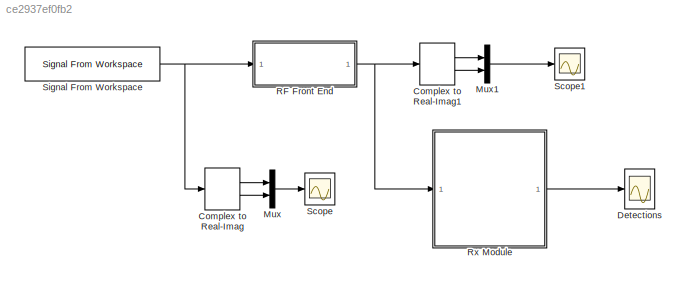
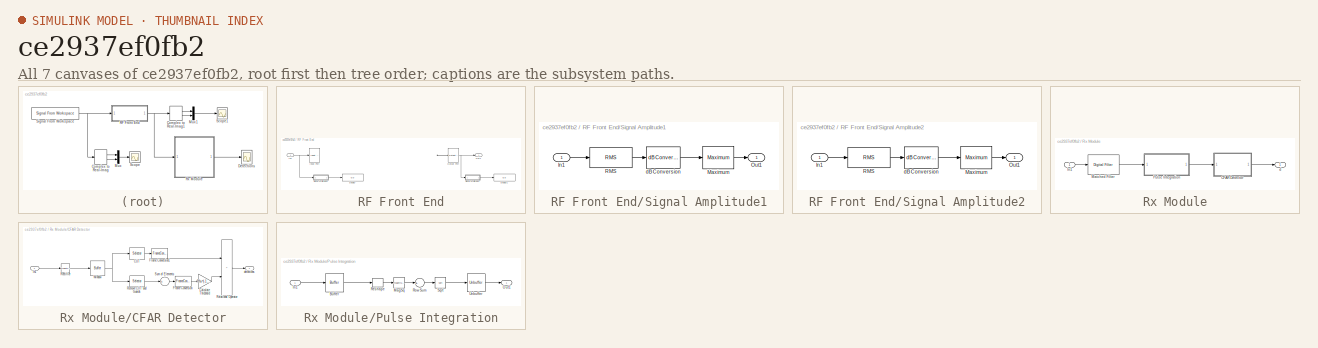
[diagram: thumbnail index - all 7 canvases of the model, root first then tree order]
MODEL slx_ce2937ef0fb2
KIND model
WORKSPACE source: MAT-file member
WORKSPACE Ts = 1.6667e-07
BLOCK [ComplexToRealImag] Complex to Real-Imag
  Ports = [1, 2]
BLOCK [ComplexToRealImag] Complex to Real-Imag1
  Ports = [1, 2]
BLOCK [Scope] Detections
  DataFormat = StructureWithTime
  Floating = off
  LimitDataPoints = off
  NumInputPorts = 1
  Ports = [1]
  SampleTime = 0
  SaveName = ScopeData2
  ShowLegends = off
  TimeRange = 0.005
  YMax = 1
  YMin = 0
  ZoomMode = xonly
BLOCK [Mux] Mux
  DisplayOption = bar
  Inputs = 2
  Ports = [2, 1]
BLOCK [Mux] Mux1
  DisplayOption = bar
  Inputs = 2
  Ports = [2, 1]
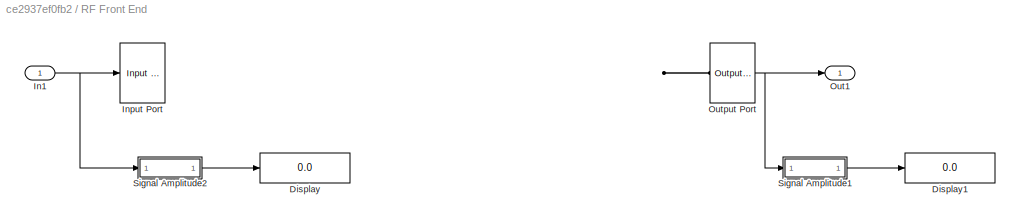
BLOCK [SubSystem] RF Front End
  FunctionWithSeparateData = off
  MaskHideContents = off
  MinAlgLoopOccurrences = off
  Opaque = off
  Ports = [1, 1]
  PropExecContextOutsideSubsystem = off
  RTWSystemCode = Auto
  RequestExecContextInheritance = off
BLOCK [Display] RF Front End/Display
  Decimation = 1
  Lockdown = off
  Ports = [1]
BLOCK [Display] RF Front End/Display1
  Decimation = 1
  Lockdown = off
  Ports = [1]
BLOCK [Inport] RF Front End/In1
  IconDisplay = Port number
BLOCK [Reference] RF Front End/Input Port  REF=rfports1/Input Port
  Description = source block
  Fc = carrierFreq
  FracBW = 0
  GoToTag = ABDCCBARCBJSOUIPGBSKSHY
  MaxLength = 128
  ModelDelay = 0
  NoiseFlag = on
  Ports = [1, 0, 0, 0, 0, 0, 1]
  RFhasDSP = Columns as channels (frame based)
  SourceBlock = rfports1/Input Port
  SourceType = Input Port
  TreatSimulinkInputSignalAs = Incident power wave
  Ts = Ts
  Zs = 50
  seed = 67987
BLOCK [Outport] RF Front End/Out1
  IconDisplay = Port number
BLOCK [Reference] RF Front End/Output Port  REF=rfports1/Output Port
  AllPlotType = X-Y plane
  AppliedComplexFormat = Magnitude (decibels)
  AppliedComplexFormat2 = Magnitude (decibels)
  AppliedNetworkData = S21
  AppliedNetworkData2 = NF
  AppliedXFormat = Hz
  AppliedXParameter = Freq
  ComplexFormat = Magnitude (decibels)
  DBFormat = Magnitude (decibels)
  DBMFormat = dBm
  DisplayData = off
  Flag = 0
  Freq = 1e9:1e8:3e9
  GoToTag = ABDCCBARCBJSOUIPGBSKSHY
  NetworkData = S11
  NoBudgetPlot = Composite data
  NoneFormat = None
  PlotFreq = User-specified
  PlotZ0 = 50
  PolarData = S11
  Ports = [0, 1, 0, 0, 0, 1]
  SmithData = S11
  SourceBlock = rfports1/Output Port
  SourceFreq = Derived from Input Port parameters
  SourceType = Output Port
  XOption = Linear
  YOption = Linear
  Zl = 50
  num_Models = 0
BLOCK [SubSystem] RF Front End/Signal Amplitude1
  FunctionWithSeparateData = off
  MaskHideContents = off
  MinAlgLoopOccurrences = off
  Opaque = off
  Ports = [1, 1]
  PropExecContextOutsideSubsystem = off
  RTWSystemCode = Auto
  RequestExecContextInheritance = off
BLOCK [Inport] RF Front End/Signal Amplitude1/In1
  IconDisplay = Port number
BLOCK [Reference] RF Front End/Signal Amplitude1/Maximum  REF=dspstat3/Maximum
  Dimension = 1
  InputProcessing = Inherited (this choice will be removed - see release notes)
  LockScale = off
  Ports = [1, 1]
  SourceBlock = dspstat3/Maximum
  SourceType = Maximum
  UserDataPersistent = on
  accumDataTypeStr = Inherit: Same as product output
  accumFracLength = 30
  accumLastDataTypeStr = Inherit: Same as product output
  accumMode = Same as product output
  accumWordLength = 32
  additionalParams = off
  allowOverrides = on
  colComp = on
  fcn = Running
  indexBase = One
  operateOver = Each column
  operation = maximum
  overflowMode = off
  prodOutputDataTypeStr = Inherit: Same as input
  prodOutputFracLength = 30
  prodOutputLastDataTypeStr = Inherit: Same as input
  prodOutputMode = Same as input
  prodOutputWordLength = 32
  reset = None
  roiEnable = off
  roiFlag = off
  roiOutput = Individual statistics for each ROI
  roiPortion = Entire ROI
  roiType = Rectangles
  roundingMode = Floor
BLOCK [Outport] RF Front End/Signal Amplitude1/Out1
  IconDisplay = Port number
BLOCK [Reference] RF Front End/Signal Amplitude1/RMS  REF=dspstat3/RMS
  InputProcessing = Columns as channels (frame based)
  Ports = [1, 1]
  SourceBlock = dspstat3/RMS
  SourceType = RMS
  UserDataPersistent = on
  dimension = 1
  directionMode = Each column
  reset_popup = None
  run = off
  treatSBRowAsCol = on
BLOCK [Reference] RF Front End/Signal Amplitude1/dB Conversion  REF=dspmathops/dB Conversion
  Ports = [1, 1]
  R = 1
  SourceBlock = dspmathops/dB Conversion
  SourceType = dB Conversion
  dBtype = dB
  fuzz = off
  intype = Amplitude
BLOCK [SubSystem] RF Front End/Signal Amplitude2
  FunctionWithSeparateData = off
  MaskHideContents = off
  MinAlgLoopOccurrences = off
  Opaque = off
  Ports = [1, 1]
  PropExecContextOutsideSubsystem = off
  RTWSystemCode = Auto
  RequestExecContextInheritance = off
BLOCK [Inport] RF Front End/Signal Amplitude2/In1
  IconDisplay = Port number
BLOCK [Reference] RF Front End/Signal Amplitude2/Maximum  REF=dspstat3/Maximum
  Dimension = 1
  InputProcessing = Inherited (this choice will be removed - see release notes)
  LockScale = off
  Ports = [1, 1]
  SourceBlock = dspstat3/Maximum
  SourceType = Maximum
  UserDataPersistent = on
  accumDataTypeStr = Inherit: Same as product output
  accumFracLength = 30
  accumLastDataTypeStr = Inherit: Same as product output
  accumMode = Same as product output
  accumWordLength = 32
  additionalParams = off
  allowOverrides = on
  colComp = on
  fcn = Running
  indexBase = One
  operateOver = Each column
  operation = maximum
  overflowMode = off
  prodOutputDataTypeStr = Inherit: Same as input
  prodOutputFracLength = 30
  prodOutputLastDataTypeStr = Inherit: Same as input
  prodOutputMode = Same as input
  prodOutputWordLength = 32
  reset = None
  roiEnable = off
  roiFlag = off
  roiOutput = Individual statistics for each ROI
  roiPortion = Entire ROI
  roiType = Rectangles
  roundingMode = Floor
BLOCK [Outport] RF Front End/Signal Amplitude2/Out1
  IconDisplay = Port number
BLOCK [Reference] RF Front End/Signal Amplitude2/RMS  REF=dspstat3/RMS
  InputProcessing = Columns as channels (frame based)
  Ports = [1, 1]
  SourceBlock = dspstat3/RMS
  SourceType = RMS
  UserDataPersistent = on
  dimension = 1
  directionMode = Each column
  reset_popup = None
  run = off
  treatSBRowAsCol = on
BLOCK [Reference] RF Front End/Signal Amplitude2/dB Conversion  REF=dspmathops/dB Conversion
  Ports = [1, 1]
  R = 1
  SourceBlock = dspmathops/dB Conversion
  SourceType = dB Conversion
  dBtype = dB
  fuzz = off
  intype = Amplitude
BLOCK [SubSystem] Rx Module
  FunctionWithSeparateData = off
  MaskHideContents = off
  MinAlgLoopOccurrences = off
  Opaque = off
  Ports = [1, 1]
  PropExecContextOutsideSubsystem = off
  RTWSystemCode = Auto
  RequestExecContextInheritance = off
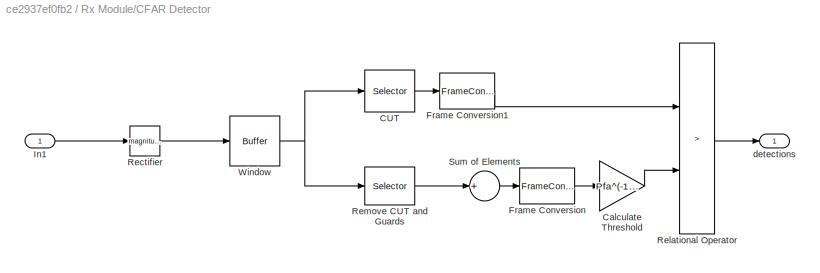
BLOCK [SubSystem] Rx Module/CFAR Detector
  FunctionWithSeparateData = off
  MaskHideContents = off
  MinAlgLoopOccurrences = off
  Opaque = off
  Ports = [1, 1]
  PropExecContextOutsideSubsystem = off
  RTWSystemCode = Auto
  RequestExecContextInheritance = off
BLOCK [Selector] Rx Module/CFAR Detector/CUT
  IndexOptions = Index vector (dialog)
  Indices = ceil(WindowLength/2)
  InputPortWidth = WindowLength
  OutputSizes = 1
  Ports = [1, 1]
BLOCK [Gain] Rx Module/CFAR Detector/Calculate Threshold
  Gain = Pfa^(-1/N)-1
  OutDataTypeStr = Inherit: Inherit via internal rule
  ParamDataTypeStr = Inherit: Inherit via internal rule
  SaturateOnIntegerOverflow = off
BLOCK [FrameConversion] Rx Module/CFAR Detector/Frame Conversion
  OutFrame = Sample-based
  Ports = [1, 1]
BLOCK [FrameConversion] Rx Module/CFAR Detector/Frame Conversion1
  OutFrame = Sample-based
  Ports = [1, 1]
BLOCK [Inport] Rx Module/CFAR Detector/In1
  IconDisplay = Port number
BLOCK [Math] Rx Module/CFAR Detector/Rectifier
  Operator = magnitude^2
  Ports = [1, 1]
BLOCK [RelationalOperator] Rx Module/CFAR Detector/Relational Operator
  InputSameDT = off
  Operator = >
  OutDataTypeStr = float('double')
  Ports = [2, 1]
BLOCK [Selector] Rx Module/CFAR Detector/Remove CUT and Guards
  IndexOptions = Index vector (dialog)
  Indices = [1:N/2,(WindowLength-N/2+1):WindowLength]
  InputPortWidth = WindowLength
  OutputSizes = 1
  Ports = [1, 1]
BLOCK [Sum] Rx Module/CFAR Detector/Sum of Elements
  InputSameDT = off
  Inputs = +
  OutDataTypeStr = Inherit: Inherit via internal rule
  Ports = [1, 1]
  SaturateOnIntegerOverflow = off
BLOCK [Buffer] Rx Module/CFAR Detector/Window
  N = WindowLength
  TreatMby1Signals = One channel
  V = WindowLength-1
BLOCK [Outport] Rx Module/CFAR Detector/detections
  IconDisplay = Port number
BLOCK [Inport] Rx Module/In1
  IconDisplay = Port number
BLOCK [Reference] Rx Module/Matched Filter  REF=dsparch4/Digital Filter
  AllPoleFiltStruct = Direct form
  BiQuadCoeffs = [1 0.3 0.4 1 0.1 0.2]
  CoeffSource = Specify via dialog
  DenCoeffs = [1 0.1]
  FIRFiltStruct = Direct form
  FiltPerSampPopup = One filter per frame
  FilterSource = Specify via dialog
  IC = 0
  ICden = 0
  ICnum = 0
  IIRFiltStruct = Direct form II transposed
  InputProcessing = Columns as channels (frame based)
  LatticeCoeffs = [0.2 0.4]
  LockScale = off
  NumCoeffs = mf_lfm
  Ports = [1, 1]
  ScaleValues = 1
  SourceBlock = dsparch4/Digital Filter
  SourceType = Digital Filter
  TypePopup = FIR (all zeros)
  UserDataPersistent = on
  accumFracLength = 30
  accumMode = Same as product output
  accumWordLength = 32
  additionalParams = off
  allowOverrides = on
  denIgnore = on
  dfiltObjectName = dfilt.dffir([1 2 1])
  firstCoeffFracLength = 15
  firstCoeffMode = Same word length as input
  firstCoeffWordLength = 16
  memoryFracLength = 15
  memoryMode = Same as accumulator
  memoryWordLength = 16
  multiplicandFracLength = 30
  multiplicandMode = Same as output
  multiplicandWordLength = 32
  outputFracLength = 15
  outputMode = Same as accumulator
  outputWordLength = 16
  overflowMode = off
  prodOutputFracLength = 30
  prodOutputMode = Same as input
  prodOutputWordLength = 32
  roundingMode = Floor
  scaleValueFracLength = 14
  secondCoeffFracLength = 15
  secondCoeffMode = Same as numerator
  secondCoeffWordLength = 16
  showAcc = off
  showCoeff = off
  showMem = off
  showMpy = off
  showOut = off
  stageIOMode = Same as input
  stageIOWordLength = 16
  stageInFracLength = 15
  stageOutFracLength = 15
  tapSumFracLength = 30
  tapSumMode = Same as input
  tapSumWordLength = 32
  thirdCoeffFracLength = 15
  thirdCoeffMode = Same as input
  thirdCoeffWordLength = 16
BLOCK [SubSystem] Rx Module/Pulse Integration
  FunctionWithSeparateData = off
  MaskHideContents = off
  MinAlgLoopOccurrences = off
  Opaque = off
  Ports = [1, 1]
  PropExecContextOutsideSubsystem = off
  RTWSystemCode = Auto
  RequestExecContextInheritance = off
BLOCK [Buffer] Rx Module/Pulse Integration/Buffer
  N = pulseLen*N
  TreatMby1Signals = One channel
  V = pulseLen*(N-1)
BLOCK [Inport] Rx Module/Pulse Integration/In1
  IconDisplay = Port number
BLOCK [Math] Rx Module/Pulse Integration/MagSq
  Operator = magnitude^2
  Ports = [1, 1]
BLOCK [Outport] Rx Module/Pulse Integration/Out1
  IconDisplay = Port number
BLOCK [Reshape] Rx Module/Pulse Integration/Reshape
  OutputDimensionality = Customize
  OutputDimensions = [200,10]
  Ports = [1, 1]
BLOCK [Sum] Rx Module/Pulse Integration/Row Sum
  CollapseDim = 2
  CollapseMode = Specified dimension
  InputSameDT = off
  Inputs = +
  OutDataTypeStr = Inherit: Inherit via internal rule
  Ports = [1, 1]
  SaturateOnIntegerOverflow = off
BLOCK [Sqrt] Rx Module/Pulse Integration/Sqrt
BLOCK [Unbuffer] Rx Module/Pulse Integration/Unbuffer
  Ports = [1, 1]
  SampleBasedProcessing = Same as frame based
BLOCK [Outport] Rx Module/d
  IconDisplay = Port number
BLOCK [Scope] Scope
  DataFormat = StructureWithTime
  Floating = off
  LimitDataPoints = off
  NumInputPorts = 1
  Ports = [1]
  SampleTime = 0
  ShowLegends = off
BLOCK [Scope] Scope1
  DataFormat = StructureWithTime
  Floating = off
  LimitDataPoints = off
  NumInputPorts = 1
  Ports = [1]
  SampleTime = 0
  SaveName = ScopeData1
  ShowLegends = off
  YMax = 0.00035
  YMin = -0.0004
BLOCK [Reference] Signal From Workspace  REF=dspsrcs4/Signal From
Workspace
  OutputAfterFinalValue = Cyclic repetition
  Ports = [0, 1]
  SourceBlock = dspsrcs4/Signal From\nWorkspace
  SourceType = Signal From Workspace
  Ts = Ts
  X = targetReturn
  ignoreOrWarnInputAndFrameLengths = off
  nsamps = 1
LINE Complex to Real-Imag1:1 -> Mux1:1
LINE Complex to Real-Imag1:2 -> Mux1:2
LINE Complex to Real-Imag:1 -> Mux:1
LINE Complex to Real-Imag:2 -> Mux:2
LINE Mux1:1 -> Scope1:1
LINE Mux:1 -> Scope:1
NET RF Front End/In1:1 -> RF Front End/Input Port:1, RF Front End/Signal Amplitude2:1
NET RF Front End/Output Port:1 -> RF Front End/Out1:1, RF Front End/Signal Amplitude1:1
LINE RF Front End/Signal Amplitude1/In1:1 -> RF Front End/Signal Amplitude1/RMS:1
LINE RF Front End/Signal Amplitude1/Maximum:1 -> RF Front End/Signal Amplitude1/Out1:1
LINE RF Front End/Signal Amplitude1/RMS:1 -> RF Front End/Signal Amplitude1/dB Conversion:1
LINE RF Front End/Signal Amplitude1/dB Conversion:1 -> RF Front End/Signal Amplitude1/Maximum:1
LINE RF Front End/Signal Amplitude1:1 -> RF Front End/Display1:1
LINE RF Front End/Signal Amplitude2/In1:1 -> RF Front End/Signal Amplitude2/RMS:1
LINE RF Front End/Signal Amplitude2/Maximum:1 -> RF Front End/Signal Amplitude2/Out1:1
LINE RF Front End/Signal Amplitude2/RMS:1 -> RF Front End/Signal Amplitude2/dB Conversion:1
LINE RF Front End/Signal Amplitude2/dB Conversion:1 -> RF Front End/Signal Amplitude2/Maximum:1
LINE RF Front End/Signal Amplitude2:1 -> RF Front End/Display:1
NET RF Front End:1 -> Complex to Real-Imag1:1, Rx Module:1
LINE Rx Module/CFAR Detector/CUT:1 -> Rx Module/CFAR Detector/Frame Conversion1:1
LINE Rx Module/CFAR Detector/Calculate Threshold:1 -> Rx Module/CFAR Detector/Relational Operator:2
LINE Rx Module/CFAR Detector/Frame Conversion1:1 -> Rx Module/CFAR Detector/Relational Operator:1
LINE Rx Module/CFAR Detector/Frame Conversion:1 -> Rx Module/CFAR Detector/Calculate Threshold:1
LINE Rx Module/CFAR Detector/In1:1 -> Rx Module/CFAR Detector/Rectifier:1
LINE Rx Module/CFAR Detector/Rectifier:1 -> Rx Module/CFAR Detector/Window:1
LINE Rx Module/CFAR Detector/Relational Operator:1 -> Rx Module/CFAR Detector/detections:1
LINE Rx Module/CFAR Detector/Remove CUT and Guards:1 -> Rx Module/CFAR Detector/Sum of Elements:1
LINE Rx Module/CFAR Detector/Sum of Elements:1 -> Rx Module/CFAR Detector/Frame Conversion:1
NET Rx Module/CFAR Detector/Window:1 -> Rx Module/CFAR Detector/CUT:1, Rx Module/CFAR Detector/Remove CUT and Guards:1
LINE Rx Module/CFAR Detector:1 -> Rx Module/d:1
LINE Rx Module/In1:1 -> Rx Module/Matched Filter:1
LINE Rx Module/Matched Filter:1 -> Rx Module/Pulse Integration:1
LINE Rx Module/Pulse Integration/Buffer:1 -> Rx Module/Pulse Integration/Reshape:1
LINE Rx Module/Pulse Integration/In1:1 -> Rx Module/Pulse Integration/Buffer:1
LINE Rx Module/Pulse Integration/MagSq:1 -> Rx Module/Pulse Integration/Row Sum:1
LINE Rx Module/Pulse Integration/Reshape:1 -> Rx Module/Pulse Integration/MagSq:1
LINE Rx Module/Pulse Integration/Row Sum:1 -> Rx Module/Pulse Integration/Sqrt:1
LINE Rx Module/Pulse Integration/Sqrt:1 -> Rx Module/Pulse Integration/Unbuffer:1
LINE Rx Module/Pulse Integration/Unbuffer:1 -> Rx Module/Pulse Integration/Out1:1
LINE Rx Module/Pulse Integration:1 -> Rx Module/CFAR Detector:1
LINE Rx Module:1 -> Detections:1
NET Signal From Workspace:1 -> Complex to Real-Imag:1, RF Front End:1
note: NET lines group one-source signal fan-out (src -> all destinations, sorted); 1:1 wires keep LINE
